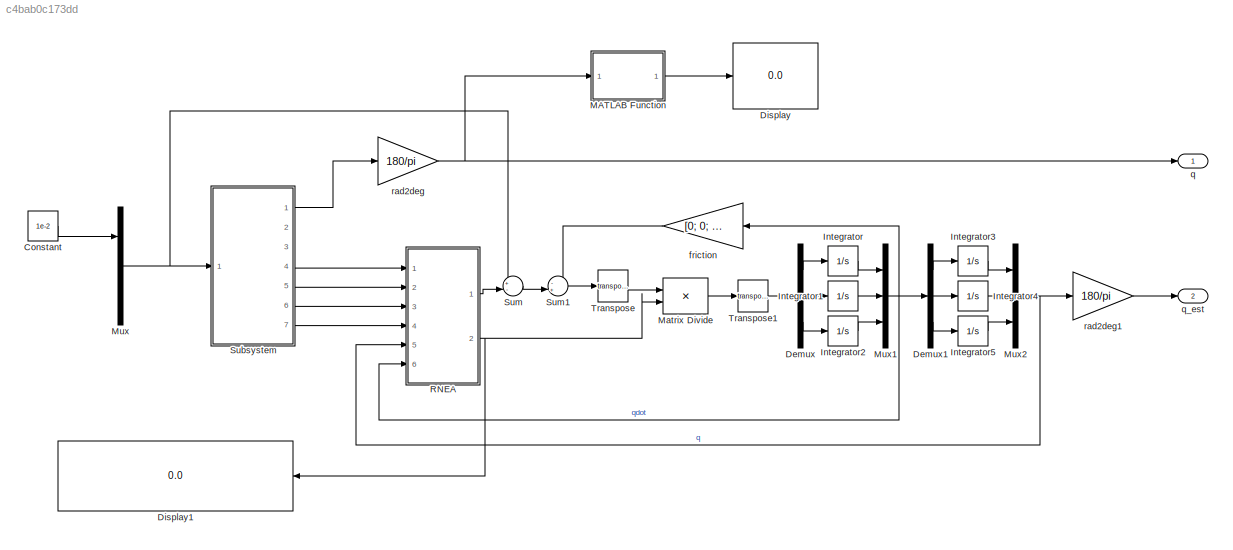
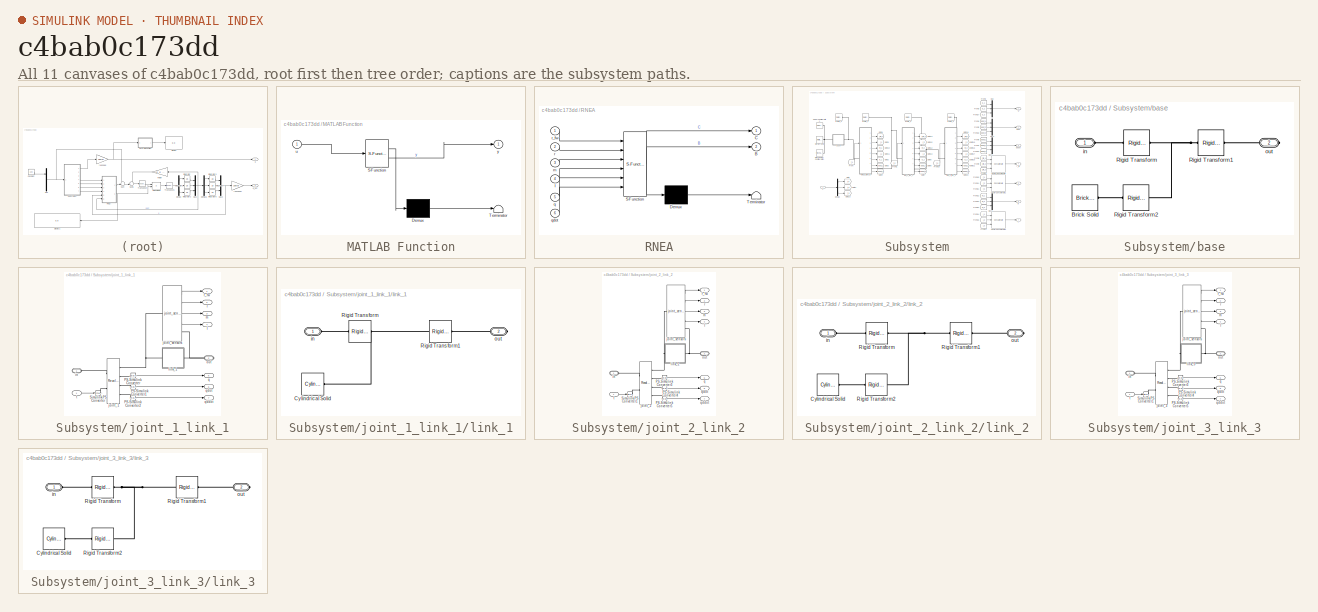
[diagram: thumbnail index - all 11 canvases of the model, root first then tree order]
MODEL slx_c4bab0c173dd
KIND model
CONFIG AbsTol = 1e-3
CONFIG EnableMultiTasking = on
CONFIG FixedStep = auto
CONFIG InitFcn = parameters;
CONFIG MaxStep = 0.01
CONFIG MinStep = auto
CONFIG RelTol = 1e-3
CONFIG SampleTimeConstraint = Unconstrained
CONFIG SolverName = VariableStepAuto
CONFIG StartTime = 0.0
CONFIG StopTime = 10.0
BLOCK [Constant] Constant
  Value = 1e-2
BLOCK [Demux] Demux
  Outputs = 3
  Ports = [1, 3]
BLOCK [Demux] Demux1
  Outputs = 3
  Ports = [1, 3]
BLOCK [Display] Display
  Ports = [1]
BLOCK [Display] Display1
  NameLocation = top
  Ports = [1]
BLOCK [Integrator] Integrator
  Ports = [1, 1]
BLOCK [Integrator] Integrator1
  Ports = [1, 1]
BLOCK [Integrator] Integrator2
  Ports = [1, 1]
BLOCK [Integrator] Integrator3
  InitialCondition = q1_init
  Ports = [1, 1]
BLOCK [Integrator] Integrator4
  InitialCondition = q2_init
  Ports = [1, 1]
BLOCK [Integrator] Integrator5
  InitialCondition = q2_init
  Ports = [1, 1]
BLOCK [SubSystem] MATLAB Function
  ErrorFcn = Stateflow.Translate.translate
  PermitHierarchicalResolution = ExplicitOnly
  Ports = [1, 1]
  RequestExecContextInheritance = off
  SFBlockType = MATLAB Function
  TreatAsAtomicUnit = on
BLOCK [Demux] MATLAB Function/ Demux 
  Outputs = 1
  Ports = [1, 1]
BLOCK [S-Function] MATLAB Function/ SFunction 
  EnableBusSupport = on
  FunctionName = sf_sfun
  PortCounts = [1 2]
  Ports = [1, 2]
  SFcnIsStateOwnerBlock = off
  SFunctionDeploymentMode = off
  Tag = Stateflow S-Function 2
BLOCK [Terminator] MATLAB Function/ Terminator 
BLOCK [Inport] MATLAB Function/u
BLOCK [Outport] MATLAB Function/y
BLOCK [Product] Matrix Divide
  Inputs = */
  Multiplication = Matrix(*)
  Ports = [2, 1]
BLOCK [Mux] Mux
  DisplayOption = bar
  Inputs = 3
  Ports = [3, 1]
BLOCK [Mux] Mux1
  DisplayOption = bar
  Inputs = 3
  Ports = [3, 1]
BLOCK [Mux] Mux2
  DisplayOption = bar
  Inputs = 3
  Ports = [3, 1]
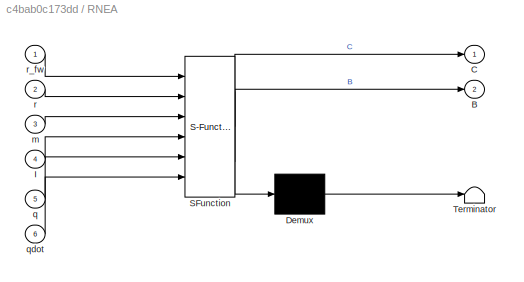
BLOCK [SubSystem] RNEA
  ErrorFcn = Stateflow.Translate.translate
  PermitHierarchicalResolution = ExplicitOnly
  Ports = [6, 2]
  RequestExecContextInheritance = off
  SFBlockType = MATLAB Function
  TreatAsAtomicUnit = on
BLOCK [Demux] RNEA/ Demux 
  Outputs = 1
  Ports = [1, 1]
BLOCK [S-Function] RNEA/ SFunction 
  EnableBusSupport = on
  FunctionName = sf_sfun
  Parameters = g
  PortCounts = [6 3]
  Ports = [6, 3]
  SFcnIsStateOwnerBlock = off
  SFunctionDeploymentMode = off
  Tag = Stateflow S-Function 1
BLOCK [Terminator] RNEA/ Terminator 
BLOCK [Outport] RNEA/B
  Port = 2
BLOCK [Outport] RNEA/C
BLOCK [Inport] RNEA/I
  Port = 4
BLOCK [Inport] RNEA/m
  Port = 3
BLOCK [Inport] RNEA/q
  Port = 5
BLOCK [Inport] RNEA/qdot
  Port = 6
BLOCK [Inport] RNEA/r
  Port = 2
BLOCK [Inport] RNEA/r_fw
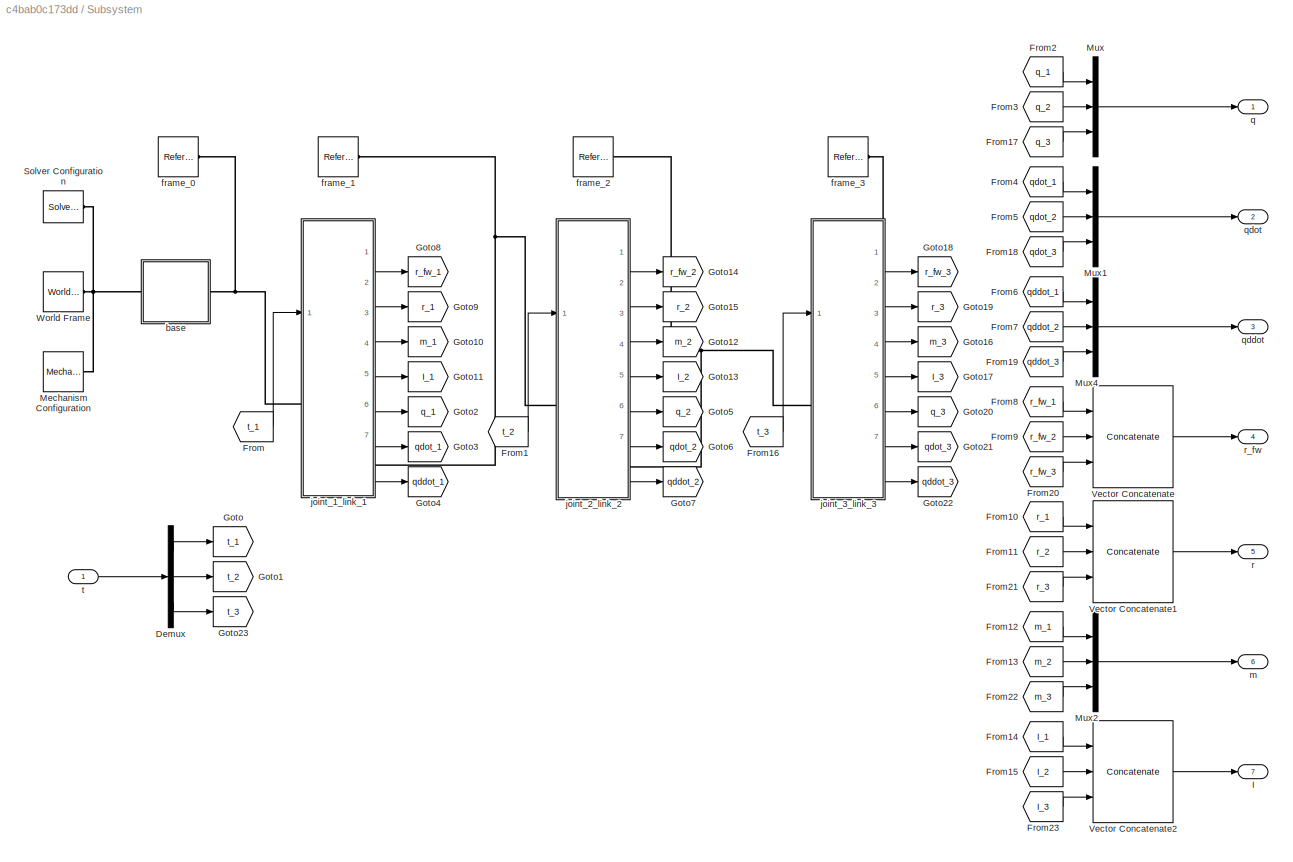
BLOCK [SubSystem] Subsystem
  Ports = [1, 7]
  RequestExecContextInheritance = off
BLOCK [Demux] Subsystem/Demux
  Outputs = 3
  Ports = [1, 3]
BLOCK [From] Subsystem/From
  GotoTag = t_1
BLOCK [From] Subsystem/From1
  GotoTag = t_2
BLOCK [From] Subsystem/From10
  GotoTag = r_1
BLOCK [From] Subsystem/From11
  GotoTag = r_2
BLOCK [From] Subsystem/From12
  GotoTag = m_1
BLOCK [From] Subsystem/From13
  GotoTag = m_2
BLOCK [From] Subsystem/From14
  GotoTag = I_1
BLOCK [From] Subsystem/From15
  GotoTag = I_2
BLOCK [From] Subsystem/From16
  GotoTag = t_3
BLOCK [From] Subsystem/From17
  GotoTag = q_3
BLOCK [From] Subsystem/From18
  GotoTag = qdot_3
BLOCK [From] Subsystem/From19
  GotoTag = qddot_3
BLOCK [From] Subsystem/From2
  GotoTag = q_1
BLOCK [From] Subsystem/From20
  GotoTag = r_fw_3
BLOCK [From] Subsystem/From21
  GotoTag = r_3
BLOCK [From] Subsystem/From22
  GotoTag = m_3
BLOCK [From] Subsystem/From23
  GotoTag = I_3
BLOCK [From] Subsystem/From3
  GotoTag = q_2
BLOCK [From] Subsystem/From4
  GotoTag = qdot_1
BLOCK [From] Subsystem/From5
  GotoTag = qdot_2
BLOCK [From] Subsystem/From6
  GotoTag = qddot_1
BLOCK [From] Subsystem/From7
  GotoTag = qddot_2
BLOCK [From] Subsystem/From8
  GotoTag = r_fw_1
BLOCK [From] Subsystem/From9
  GotoTag = r_fw_2
BLOCK [Goto] Subsystem/Goto
  GotoTag = t_1
BLOCK [Goto] Subsystem/Goto1
  GotoTag = t_2
BLOCK [Goto] Subsystem/Goto10
  GotoTag = m_1
BLOCK [Goto] Subsystem/Goto11
  GotoTag = I_1
BLOCK [Goto] Subsystem/Goto12
  GotoTag = m_2
BLOCK [Goto] Subsystem/Goto13
  GotoTag = I_2
BLOCK [Goto] Subsystem/Goto14
  GotoTag = r_fw_2
BLOCK [Goto] Subsystem/Goto15
  GotoTag = r_2
BLOCK [Goto] Subsystem/Goto16
  GotoTag = m_3
BLOCK [Goto] Subsystem/Goto17
  GotoTag = I_3
BLOCK [Goto] Subsystem/Goto18
  GotoTag = r_fw_3
BLOCK [Goto] Subsystem/Goto19
  GotoTag = r_3
BLOCK [Goto] Subsystem/Goto2
  GotoTag = q_1
BLOCK [Goto] Subsystem/Goto20
  GotoTag = q_3
BLOCK [Goto] Subsystem/Goto21
  GotoTag = qdot_3
BLOCK [Goto] Subsystem/Goto22
  GotoTag = qddot_3
BLOCK [Goto] Subsystem/Goto23
  GotoTag = t_3
BLOCK [Goto] Subsystem/Goto3
  GotoTag = qdot_1
BLOCK [Goto] Subsystem/Goto4
  GotoTag = qddot_1
BLOCK [Goto] Subsystem/Goto5
  GotoTag = q_2
BLOCK [Goto] Subsystem/Goto6
  GotoTag = qdot_2
BLOCK [Goto] Subsystem/Goto7
  GotoTag = qddot_2
BLOCK [Goto] Subsystem/Goto8
  GotoTag = r_fw_1
BLOCK [Goto] Subsystem/Goto9
  GotoTag = r_1
BLOCK [Outport] Subsystem/I
  Port = 7
BLOCK [Reference] Subsystem/Mechanism Configuration  REF=sm_lib/Utilities/Mechanism
Configuration
  Ports = [0, 0, 0, 0, 0, 0, 1]
  SourceBlock = sm_lib/Utilities/Mechanism\nConfiguration
  SourceProductBaseCode = MS
  SourceType = Mechanism\nConfiguration
BLOCK [Mux] Subsystem/Mux
  DisplayOption = bar
  Inputs = 3
  Ports = [3, 1]
BLOCK [Mux] Subsystem/Mux1
  DisplayOption = bar
  Inputs = 3
  Ports = [3, 1]
BLOCK [Mux] Subsystem/Mux2
  DisplayOption = bar
  Inputs = 3
  Ports = [3, 1]
BLOCK [Mux] Subsystem/Mux4
  DisplayOption = bar
  Inputs = 3
  Ports = [3, 1]
BLOCK [Reference] Subsystem/Solver Configuration  REF=nesl_utility/Solver
Configuration
  Ports = [0, 0, 0, 0, 0, 0, 1]
  SourceBlock = nesl_utility/Solver\nConfiguration
  SourceProductName = Utilities
  SourceType = Solver\nConfiguration
BLOCK [Concatenate] Subsystem/Vector Concatenate
  ConcatenateDimension = 2
  Mode = Multidimensional array
  NumInputs = 3
  Ports = [3, 1]
BLOCK [Concatenate] Subsystem/Vector Concatenate1
  ConcatenateDimension = 2
  Mode = Multidimensional array
  NumInputs = 3
  Ports = [3, 1]
BLOCK [Concatenate] Subsystem/Vector Concatenate2
  Mode = Multidimensional array
  NumInputs = 3
  Ports = [3, 1]
BLOCK [Reference] Subsystem/World Frame  REF=sm_lib/Frames and
Transforms/World Frame
  Ports = [0, 0, 0, 0, 0, 0, 1]
  SourceBlock = sm_lib/Frames and\nTransforms/World Frame
  SourceProductName = Multibody
  SourceType = World Frame
BLOCK [SubSystem] Subsystem/base
  Ports = [0, 0, 0, 0, 0, 1, 1]
  RequestExecContextInheritance = off
BLOCK [Reference] Subsystem/base/Brick Solid  REF=sm_lib/Body Elements/Brick Solid
  Ports = [0, 0, 0, 0, 0, 0, 1]
  SourceBlock = sm_lib/Body Elements/Brick Solid
  SourceProductBaseCode = MS
  SourceType = Brick Solid
BLOCK [Reference] Subsystem/base/Rigid Transform  REF=sm_lib/Frames and
Transforms/Rigid
Transform
  Ports = [0, 0, 0, 0, 0, 1, 1]
  SourceBlock = sm_lib/Frames and\nTransforms/Rigid\nTransform
  SourceProductBaseCode = MS
  SourceType = Rigid\nTransform
BLOCK [Reference] Subsystem/base/Rigid Transform1  REF=sm_lib/Frames and
Transforms/Rigid
Transform
  Ports = [0, 0, 0, 0, 0, 1, 1]
  SourceBlock = sm_lib/Frames and\nTransforms/Rigid\nTransform
  SourceProductBaseCode = MS
  SourceType = Rigid\nTransform
BLOCK [Reference] Subsystem/base/Rigid Transform2  REF=sm_lib/Frames and
Transforms/Rigid
Transform
  Ports = [0, 0, 0, 0, 0, 1, 1]
  SourceBlock = sm_lib/Frames and\nTransforms/Rigid\nTransform
  SourceProductBaseCode = MS
  SourceType = Rigid\nTransform
BLOCK [PMIOPort] Subsystem/base/in
  Side = Left
BLOCK [PMIOPort] Subsystem/base/out
  Port = 2
  Side = Right
BLOCK [Reference] Subsystem/frame_0  REF=sm_lib/Frames and
Transforms/Reference
Frame
  Ports = [0, 0, 0, 0, 0, 0, 1]
  SourceBlock = sm_lib/Frames and\nTransforms/Reference\nFrame
  SourceProductBaseCode = MS
  SourceType = Reference\nFrame
BLOCK [Reference] Subsystem/frame_1  REF=sm_lib/Frames and
Transforms/Reference
Frame
  Ports = [0, 0, 0, 0, 0, 0, 1]
  SourceBlock = sm_lib/Frames and\nTransforms/Reference\nFrame
  SourceProductBaseCode = MS
  SourceType = Reference\nFrame
BLOCK [Reference] Subsystem/frame_2  REF=sm_lib/Frames and
Transforms/Reference
Frame
  Ports = [0, 0, 0, 0, 0, 0, 1]
  SourceBlock = sm_lib/Frames and\nTransforms/Reference\nFrame
  SourceProductBaseCode = MS
  SourceType = Reference\nFrame
BLOCK [Reference] Subsystem/frame_3  REF=sm_lib/Frames and
Transforms/Reference
Frame
  Ports = [0, 0, 0, 0, 0, 0, 1]
  SourceBlock = sm_lib/Frames and\nTransforms/Reference\nFrame
  SourceProductBaseCode = MS
  SourceType = Reference\nFrame
BLOCK [SubSystem] Subsystem/joint_1_link_1
  PortSchema = {"entries":[{"content":{"sides":[{"content":{"connectorIds":["LConn1","In1"]},"type":"ConnectorPlacement.EquallySpacedRectSide","uuid":"70143846-b131-4138-8b46-ded6337bfe91"},{"content":{"connectorIds":["RConn1","Out1","Out2","Out3","Out4","Out5","Out6","Out7"],"side":"RIGHT"},"type":"ConnectorPlacement.EquallySpacedRectSide","uuid":"7a88210b-34f9-4fff-83ab-b856809650f8"},{"content":{"connectorIds...<+444ch>  <repeated x3 — deduplicated; at blocks: joint_1_link_1, joint_2_link_2, joint_3_link_3>
  Ports = [1, 7, 0, 0, 0, 1, 1]
  RequestExecContextInheritance = off
BLOCK [Outport] Subsystem/joint_1_link_1/I
  Port = 4
BLOCK [Reference] Subsystem/joint_1_link_1/PS-Simulink Converter  REF=nesl_utility/PS-Simulink
Converter
  Ports = [0, 1, 0, 0, 0, 1]
  SourceBlock = nesl_utility/PS-Simulink\nConverter
  SourceProductBaseCode = SS
  SourceType = PS-Simulink\nConverter
BLOCK [Reference] Subsystem/joint_1_link_1/PS-Simulink Converter1  REF=nesl_utility/PS-Simulink
Converter
  Ports = [0, 1, 0, 0, 0, 1]
  SourceBlock = nesl_utility/PS-Simulink\nConverter
  SourceProductBaseCode = SS
  SourceType = PS-Simulink\nConverter
BLOCK [Reference] Subsystem/joint_1_link_1/PS-Simulink Converter2  REF=nesl_utility/PS-Simulink
Converter
  Ports = [0, 1, 0, 0, 0, 1]
  SourceBlock = nesl_utility/PS-Simulink\nConverter
  SourceProductBaseCode = SS
  SourceType = PS-Simulink\nConverter
BLOCK [Reference] Subsystem/joint_1_link_1/Simulink-PS Converter  REF=nesl_utility/Simulink-PS
Converter
  Ports = [1, 0, 0, 0, 0, 0, 1]
  SourceBlock = nesl_utility/Simulink-PS\nConverter
  SourceProductBaseCode = SS
  SourceType = Simulink-PS\nConverter
BLOCK [PMIOPort] Subsystem/joint_1_link_1/in
  Side = Left
BLOCK [Reference] Subsystem/joint_1_link_1/joint_1  REF=sm_lib/Joints/Revolute Joint
  Ports = [0, 0, 0, 0, 0, 2, 4]
  SourceBlock = sm_lib/Joints/Revolute Joint
  SourceProductBaseCode = MS
  SourceType = Revolute Joint
BLOCK [Reference] Subsystem/joint_1_link_1/joint_sensors  REF=robot_arms_library/joint_sensors  (lib defined in slx_32957a7d959d)
  Ports = [0, 4, 0, 0, 0, 1, 1]
  SourceBlock = robot_arms_library/joint_sensors
BLOCK [SubSystem] Subsystem/joint_1_link_1/link_1
  Ports = [0, 0, 0, 0, 0, 1, 1]
  RequestExecContextInheritance = off
BLOCK [Reference] Subsystem/joint_1_link_1/link_1/Cylindrical Solid  REF=sm_lib/Body Elements/Cylindrical Solid
  Ports = [0, 0, 0, 0, 0, 0, 1]
  SourceBlock = sm_lib/Body Elements/Cylindrical Solid
  SourceProductBaseCode = MS
  SourceType = Cylindrical Solid
BLOCK [Reference] Subsystem/joint_1_link_1/link_1/Rigid Transform  REF=sm_lib/Frames and
Transforms/Rigid
Transform
  Ports = [0, 0, 0, 0, 0, 1, 1]
  SourceBlock = sm_lib/Frames and\nTransforms/Rigid\nTransform
  SourceProductBaseCode = MS
  SourceType = Rigid\nTransform
BLOCK [Reference] Subsystem/joint_1_link_1/link_1/Rigid Transform1  REF=sm_lib/Frames and
Transforms/Rigid
Transform
  Ports = [0, 0, 0, 0, 0, 1, 1]
  SourceBlock = sm_lib/Frames and\nTransforms/Rigid\nTransform
  SourceProductBaseCode = MS
  SourceType = Rigid\nTransform
BLOCK [PMIOPort] Subsystem/joint_1_link_1/link_1/in
  Side = Left
BLOCK [PMIOPort] Subsystem/joint_1_link_1/link_1/out
  Port = 2
  Side = Right
BLOCK [Outport] Subsystem/joint_1_link_1/m
  Port = 3
BLOCK [PMIOPort] Subsystem/joint_1_link_1/out
  Port = 2
  Side = Right
BLOCK [Outport] Subsystem/joint_1_link_1/q
  Port = 5
BLOCK [Outport] Subsystem/joint_1_link_1/qddot
  Port = 7
BLOCK [Outport] Subsystem/joint_1_link_1/qdot
  Port = 6
BLOCK [Outport] Subsystem/joint_1_link_1/r
  Port = 2
BLOCK [Outport] Subsystem/joint_1_link_1/r_fw
BLOCK [Inport] Subsystem/joint_1_link_1/t
BLOCK [SubSystem] Subsystem/joint_2_link_2
  Ports = [1, 7, 0, 0, 0, 1, 1]
  RequestExecContextInheritance = off
BLOCK [Outport] Subsystem/joint_2_link_2/I
  Port = 4
BLOCK [Reference] Subsystem/joint_2_link_2/PS-Simulink Converter3  REF=nesl_utility/PS-Simulink
Converter
  Ports = [0, 1, 0, 0, 0, 1]
  SourceBlock = nesl_utility/PS-Simulink\nConverter
  SourceProductBaseCode = SS
  SourceType = PS-Simulink\nConverter
BLOCK [Reference] Subsystem/joint_2_link_2/PS-Simulink Converter4  REF=nesl_utility/PS-Simulink
Converter
  Ports = [0, 1, 0, 0, 0, 1]
  SourceBlock = nesl_utility/PS-Simulink\nConverter
  SourceProductBaseCode = SS
  SourceType = PS-Simulink\nConverter
BLOCK [Reference] Subsystem/joint_2_link_2/PS-Simulink Converter5  REF=nesl_utility/PS-Simulink
Converter
  Ports = [0, 1, 0, 0, 0, 1]
  SourceBlock = nesl_utility/PS-Simulink\nConverter
  SourceProductBaseCode = SS
  SourceType = PS-Simulink\nConverter
BLOCK [Reference] Subsystem/joint_2_link_2/Simulink-PS Converter1  REF=nesl_utility/Simulink-PS
Converter
  Ports = [1, 0, 0, 0, 0, 0, 1]
  SourceBlock = nesl_utility/Simulink-PS\nConverter
  SourceProductBaseCode = SS
  SourceType = Simulink-PS\nConverter
BLOCK [PMIOPort] Subsystem/joint_2_link_2/in
  Side = Left
BLOCK [Reference] Subsystem/joint_2_link_2/joint_2  REF=sm_lib/Joints/Revolute Joint
  Ports = [0, 0, 0, 0, 0, 2, 4]
  SourceBlock = sm_lib/Joints/Revolute Joint
  SourceProductBaseCode = MS
  SourceType = Revolute Joint
BLOCK [Reference] Subsystem/joint_2_link_2/joint_sensors  REF=robot_arms_library/joint_sensors  (lib defined in slx_32957a7d959d)
  Ports = [0, 4, 0, 0, 0, 1, 1]
  SourceBlock = robot_arms_library/joint_sensors
BLOCK [SubSystem] Subsystem/joint_2_link_2/link_2
  Ports = [0, 0, 0, 0, 0, 1, 1]
  RequestExecContextInheritance = off
BLOCK [Reference] Subsystem/joint_2_link_2/link_2/Cylindrical Solid  REF=sm_lib/Body Elements/Cylindrical Solid
  Ports = [0, 0, 0, 0, 0, 0, 1]
  SourceBlock = sm_lib/Body Elements/Cylindrical Solid
  SourceProductBaseCode = MS
  SourceType = Cylindrical Solid
BLOCK [Reference] Subsystem/joint_2_link_2/link_2/Rigid Transform  REF=sm_lib/Frames and
Transforms/Rigid
Transform
  Ports = [0, 0, 0, 0, 0, 1, 1]
  SourceBlock = sm_lib/Frames and\nTransforms/Rigid\nTransform
  SourceProductBaseCode = MS
  SourceType = Rigid\nTransform
BLOCK [Reference] Subsystem/joint_2_link_2/link_2/Rigid Transform1  REF=sm_lib/Frames and
Transforms/Rigid
Transform
  Ports = [0, 0, 0, 0, 0, 1, 1]
  SourceBlock = sm_lib/Frames and\nTransforms/Rigid\nTransform
  SourceProductBaseCode = MS
  SourceType = Rigid\nTransform
BLOCK [Reference] Subsystem/joint_2_link_2/link_2/Rigid Transform2  REF=sm_lib/Frames and
Transforms/Rigid
Transform
  Ports = [0, 0, 0, 0, 0, 1, 1]
  SourceBlock = sm_lib/Frames and\nTransforms/Rigid\nTransform
  SourceProductBaseCode = MS
  SourceType = Rigid\nTransform
BLOCK [PMIOPort] Subsystem/joint_2_link_2/link_2/in
  Side = Left
BLOCK [PMIOPort] Subsystem/joint_2_link_2/link_2/out
  Port = 2
  Side = Right
BLOCK [Outport] Subsystem/joint_2_link_2/m
  Port = 3
BLOCK [PMIOPort] Subsystem/joint_2_link_2/out
  Port = 2
  Side = Right
BLOCK [Outport] Subsystem/joint_2_link_2/q
  Port = 5
BLOCK [Outport] Subsystem/joint_2_link_2/qddot
  Port = 7
BLOCK [Outport] Subsystem/joint_2_link_2/qdot
  Port = 6
BLOCK [Outport] Subsystem/joint_2_link_2/r
  Port = 2
BLOCK [Outport] Subsystem/joint_2_link_2/r_fw
BLOCK [Inport] Subsystem/joint_2_link_2/t
BLOCK [SubSystem] Subsystem/joint_3_link_3
  Ports = [1, 7, 0, 0, 0, 1, 1]
  RequestExecContextInheritance = off
BLOCK [Outport] Subsystem/joint_3_link_3/I
  Port = 4
BLOCK [Reference] Subsystem/joint_3_link_3/PS-Simulink Converter3  REF=nesl_utility/PS-Simulink
Converter
  Ports = [0, 1, 0, 0, 0, 1]
  SourceBlock = nesl_utility/PS-Simulink\nConverter
  SourceProductBaseCode = SS
  SourceType = PS-Simulink\nConverter
BLOCK [Reference] Subsystem/joint_3_link_3/PS-Simulink Converter4  REF=nesl_utility/PS-Simulink
Converter
  Ports = [0, 1, 0, 0, 0, 1]
  SourceBlock = nesl_utility/PS-Simulink\nConverter
  SourceProductBaseCode = SS
  SourceType = PS-Simulink\nConverter
BLOCK [Reference] Subsystem/joint_3_link_3/PS-Simulink Converter5  REF=nesl_utility/PS-Simulink
Converter
  Ports = [0, 1, 0, 0, 0, 1]
  SourceBlock = nesl_utility/PS-Simulink\nConverter
  SourceProductBaseCode = SS
  SourceType = PS-Simulink\nConverter
BLOCK [Reference] Subsystem/joint_3_link_3/Simulink-PS Converter1  REF=nesl_utility/Simulink-PS
Converter
  Ports = [1, 0, 0, 0, 0, 0, 1]
  SourceBlock = nesl_utility/Simulink-PS\nConverter
  SourceProductBaseCode = SS
  SourceType = Simulink-PS\nConverter
BLOCK [PMIOPort] Subsystem/joint_3_link_3/in
  Side = Left
BLOCK [Reference] Subsystem/joint_3_link_3/joint_3  REF=sm_lib/Joints/Revolute Joint
  Ports = [0, 0, 0, 0, 0, 2, 4]
  SourceBlock = sm_lib/Joints/Revolute Joint
  SourceProductBaseCode = MS
  SourceType = Revolute Joint
BLOCK [Reference] Subsystem/joint_3_link_3/joint_sensors  REF=robot_arms_library/joint_sensors  (lib defined in slx_32957a7d959d)
  Ports = [0, 4, 0, 0, 0, 1, 1]
  SourceBlock = robot_arms_library/joint_sensors
BLOCK [SubSystem] Subsystem/joint_3_link_3/link_3
  Ports = [0, 0, 0, 0, 0, 1, 1]
  RequestExecContextInheritance = off
BLOCK [Reference] Subsystem/joint_3_link_3/link_3/Cylindrical Solid  REF=sm_lib/Body Elements/Cylindrical Solid
  Ports = [0, 0, 0, 0, 0, 0, 1]
  SourceBlock = sm_lib/Body Elements/Cylindrical Solid
  SourceProductBaseCode = MS
  SourceType = Cylindrical Solid
BLOCK [Reference] Subsystem/joint_3_link_3/link_3/Rigid Transform  REF=sm_lib/Frames and
Transforms/Rigid
Transform
  Ports = [0, 0, 0, 0, 0, 1, 1]
  SourceBlock = sm_lib/Frames and\nTransforms/Rigid\nTransform
  SourceProductBaseCode = MS
  SourceType = Rigid\nTransform
BLOCK [Reference] Subsystem/joint_3_link_3/link_3/Rigid Transform1  REF=sm_lib/Frames and
Transforms/Rigid
Transform
  Ports = [0, 0, 0, 0, 0, 1, 1]
  SourceBlock = sm_lib/Frames and\nTransforms/Rigid\nTransform
  SourceProductBaseCode = MS
  SourceType = Rigid\nTransform
BLOCK [Reference] Subsystem/joint_3_link_3/link_3/Rigid Transform2  REF=sm_lib/Frames and
Transforms/Rigid
Transform
  Ports = [0, 0, 0, 0, 0, 1, 1]
  SourceBlock = sm_lib/Frames and\nTransforms/Rigid\nTransform
  SourceProductBaseCode = MS
  SourceType = Rigid\nTransform
BLOCK [PMIOPort] Subsystem/joint_3_link_3/link_3/in
  Side = Left
BLOCK [PMIOPort] Subsystem/joint_3_link_3/link_3/out
  Port = 2
  Side = Right
BLOCK [Outport] Subsystem/joint_3_link_3/m
  Port = 3
BLOCK [PMIOPort] Subsystem/joint_3_link_3/out
  Port = 2
  Side = Right
BLOCK [Outport] Subsystem/joint_3_link_3/q
  Port = 5
BLOCK [Outport] Subsystem/joint_3_link_3/qddot
  Port = 7
BLOCK [Outport] Subsystem/joint_3_link_3/qdot
  Port = 6
BLOCK [Outport] Subsystem/joint_3_link_3/r
  Port = 2
BLOCK [Outport] Subsystem/joint_3_link_3/r_fw
BLOCK [Inport] Subsystem/joint_3_link_3/t
BLOCK [Outport] Subsystem/m
  Port = 6
BLOCK [Outport] Subsystem/q
BLOCK [Outport] Subsystem/qddot
  Port = 3
BLOCK [Outport] Subsystem/qdot
  Port = 2
BLOCK [Outport] Subsystem/r
  Port = 5
BLOCK [Outport] Subsystem/r_fw
  Port = 4
BLOCK [Inport] Subsystem/t
BLOCK [Sum] Sum
  Inputs = +-|
  Ports = [2, 1]
BLOCK [Sum] Sum1
  Inputs = -+|
  Ports = [2, 1]
BLOCK [Math] Transpose
  Operator = transpose
  Ports = [1, 1]
BLOCK [Math] Transpose1
  Operator = transpose
  Ports = [1, 1]
BLOCK [Gain] friction
  Gain = [0; 0; 0]
BLOCK [Outport] q
BLOCK [Outport] q_est
  Port = 2
BLOCK [Gain] rad2deg
  Gain = 180/pi
BLOCK [Gain] rad2deg1
  Gain = 180/pi
LINE Constant:1 -> Mux:1
LINE Demux1:1 -> Integrator3:1
LINE Demux1:2 -> Integrator4:1
LINE Demux1:3 -> Integrator5:1
LINE Demux:1 -> Integrator:1
LINE Demux:2 -> Integrator1:1
LINE Demux:3 -> Integrator2:1
LINE Integrator1:1 -> Mux1:2
LINE Integrator2:1 -> Mux1:3
LINE Integrator3:1 -> Mux2:1
LINE Integrator4:1 -> Mux2:2
LINE Integrator5:1 -> Mux2:3
LINE Integrator:1 -> Mux1:1
LINE MATLAB Function:1 -> Display:1
LINE Matrix Divide:1 -> Transpose1:1
NET Mux1:1 -> Demux1:1, RNEA:6, friction:1
NET Mux2:1 -> RNEA:5, rad2deg1:1
NET Mux:1 -> Subsystem:1, Sum:1
LINE RNEA:1 -> Sum:2
NET RNEA:2 -> Display1:1, Matrix Divide:2
LINE Subsystem/Demux:1 -> Subsystem/Goto:1
LINE Subsystem/Demux:2 -> Subsystem/Goto1:1
LINE Subsystem/Demux:3 -> Subsystem/Goto23:1
LINE Subsystem/From10:1 -> Subsystem/Vector Concatenate1:1
LINE Subsystem/From11:1 -> Subsystem/Vector Concatenate1:2
LINE Subsystem/From12:1 -> Subsystem/Mux2:1
LINE Subsystem/From13:1 -> Subsystem/Mux2:2
LINE Subsystem/From14:1 -> Subsystem/Vector Concatenate2:1
LINE Subsystem/From15:1 -> Subsystem/Vector Concatenate2:2
LINE Subsystem/From16:1 -> Subsystem/joint_3_link_3:1
LINE Subsystem/From17:1 -> Subsystem/Mux:3
LINE Subsystem/From18:1 -> Subsystem/Mux1:3
LINE Subsystem/From19:1 -> Subsystem/Mux4:3
LINE Subsystem/From1:1 -> Subsystem/joint_2_link_2:1
LINE Subsystem/From20:1 -> Subsystem/Vector Concatenate:3
LINE Subsystem/From21:1 -> Subsystem/Vector Concatenate1:3
LINE Subsystem/From22:1 -> Subsystem/Mux2:3
LINE Subsystem/From23:1 -> Subsystem/Vector Concatenate2:3
LINE Subsystem/From2:1 -> Subsystem/Mux:1
LINE Subsystem/From3:1 -> Subsystem/Mux:2
LINE Subsystem/From4:1 -> Subsystem/Mux1:1
LINE Subsystem/From5:1 -> Subsystem/Mux1:2
LINE Subsystem/From6:1 -> Subsystem/Mux4:1
LINE Subsystem/From7:1 -> Subsystem/Mux4:2
LINE Subsystem/From8:1 -> Subsystem/Vector Concatenate:1
LINE Subsystem/From9:1 -> Subsystem/Vector Concatenate:2
LINE Subsystem/From:1 -> Subsystem/joint_1_link_1:1
LINE Subsystem/Mux1:1 -> Subsystem/qdot:1
LINE Subsystem/Mux2:1 -> Subsystem/m:1
LINE Subsystem/Mux4:1 -> Subsystem/qddot:1
LINE Subsystem/Mux:1 -> Subsystem/q:1
LINE Subsystem/Vector Concatenate1:1 -> Subsystem/r:1
LINE Subsystem/Vector Concatenate2:1 -> Subsystem/I:1
LINE Subsystem/Vector Concatenate:1 -> Subsystem/r_fw:1
LINE Subsystem/joint_1_link_1/PS-Simulink Converter1:1 -> Subsystem/joint_1_link_1/qdot:1
LINE Subsystem/joint_1_link_1/PS-Simulink Converter2:1 -> Subsystem/joint_1_link_1/qddot:1
LINE Subsystem/joint_1_link_1/PS-Simulink Converter:1 -> Subsystem/joint_1_link_1/q:1
LINE Subsystem/joint_1_link_1/joint_sensors:1 -> Subsystem/joint_1_link_1/r_fw:1
LINE Subsystem/joint_1_link_1/joint_sensors:2 -> Subsystem/joint_1_link_1/r:1
LINE Subsystem/joint_1_link_1/joint_sensors:3 -> Subsystem/joint_1_link_1/m:1
LINE Subsystem/joint_1_link_1/joint_sensors:4 -> Subsystem/joint_1_link_1/I:1
LINE Subsystem/joint_1_link_1/t:1 -> Subsystem/joint_1_link_1/Simulink-PS Converter:1
LINE Subsystem/joint_1_link_1:1 -> Subsystem/Goto8:1
LINE Subsystem/joint_1_link_1:2 -> Subsystem/Goto9:1
LINE Subsystem/joint_1_link_1:3 -> Subsystem/Goto10:1
LINE Subsystem/joint_1_link_1:4 -> Subsystem/Goto11:1
LINE Subsystem/joint_1_link_1:5 -> Subsystem/Goto2:1
LINE Subsystem/joint_1_link_1:6 -> Subsystem/Goto3:1
LINE Subsystem/joint_1_link_1:7 -> Subsystem/Goto4:1
LINE Subsystem/joint_2_link_2/PS-Simulink Converter3:1 -> Subsystem/joint_2_link_2/q:1
LINE Subsystem/joint_2_link_2/PS-Simulink Converter4:1 -> Subsystem/joint_2_link_2/qdot:1
LINE Subsystem/joint_2_link_2/PS-Simulink Converter5:1 -> Subsystem/joint_2_link_2/qddot:1
LINE Subsystem/joint_2_link_2/joint_sensors:1 -> Subsystem/joint_2_link_2/r_fw:1
LINE Subsystem/joint_2_link_2/joint_sensors:2 -> Subsystem/joint_2_link_2/r:1
LINE Subsystem/joint_2_link_2/joint_sensors:3 -> Subsystem/joint_2_link_2/m:1
LINE Subsystem/joint_2_link_2/joint_sensors:4 -> Subsystem/joint_2_link_2/I:1
LINE Subsystem/joint_2_link_2/t:1 -> Subsystem/joint_2_link_2/Simulink-PS Converter1:1
LINE Subsystem/joint_2_link_2:1 -> Subsystem/Goto14:1
LINE Subsystem/joint_2_link_2:2 -> Subsystem/Goto15:1
LINE Subsystem/joint_2_link_2:3 -> Subsystem/Goto12:1
LINE Subsystem/joint_2_link_2:4 -> Subsystem/Goto13:1
LINE Subsystem/joint_2_link_2:5 -> Subsystem/Goto5:1
LINE Subsystem/joint_2_link_2:6 -> Subsystem/Goto6:1
LINE Subsystem/joint_2_link_2:7 -> Subsystem/Goto7:1
LINE Subsystem/joint_3_link_3/PS-Simulink Converter3:1 -> Subsystem/joint_3_link_3/q:1
LINE Subsystem/joint_3_link_3/PS-Simulink Converter4:1 -> Subsystem/joint_3_link_3/qdot:1
LINE Subsystem/joint_3_link_3/PS-Simulink Converter5:1 -> Subsystem/joint_3_link_3/qddot:1
LINE Subsystem/joint_3_link_3/joint_sensors:1 -> Subsystem/joint_3_link_3/r_fw:1
LINE Subsystem/joint_3_link_3/joint_sensors:2 -> Subsystem/joint_3_link_3/r:1
LINE Subsystem/joint_3_link_3/joint_sensors:3 -> Subsystem/joint_3_link_3/m:1
LINE Subsystem/joint_3_link_3/joint_sensors:4 -> Subsystem/joint_3_link_3/I:1
LINE Subsystem/joint_3_link_3/t:1 -> Subsystem/joint_3_link_3/Simulink-PS Converter1:1
LINE Subsystem/joint_3_link_3:1 -> Subsystem/Goto18:1
LINE Subsystem/joint_3_link_3:2 -> Subsystem/Goto19:1
LINE Subsystem/joint_3_link_3:3 -> Subsystem/Goto16:1
LINE Subsystem/joint_3_link_3:4 -> Subsystem/Goto17:1
LINE Subsystem/joint_3_link_3:5 -> Subsystem/Goto20:1
LINE Subsystem/joint_3_link_3:6 -> Subsystem/Goto21:1
LINE Subsystem/joint_3_link_3:7 -> Subsystem/Goto22:1
LINE Subsystem/t:1 -> Subsystem/Demux:1
LINE Subsystem:1 -> rad2deg:1
LINE Subsystem:4 -> RNEA:1
LINE Subsystem:5 -> RNEA:2
LINE Subsystem:6 -> RNEA:3
LINE Subsystem:7 -> RNEA:4
LINE Sum1:1 -> Transpose:1
LINE Sum:1 -> Sum1:2
LINE Transpose1:1 -> Demux:1
LINE Transpose:1 -> Matrix Divide:1
LINE friction:1 -> Sum1:1
LINE rad2deg1:1 -> q_est:1
NET rad2deg:1 -> MATLAB Function:1, q:1
PNET net1: Subsystem/Mechanism Configuration:RConn1 -- Subsystem/Solver Configuration:RConn1 -- Subsystem/World Frame:RConn1 -- Subsystem/base:LConn1
PLINE Subsystem/base/Brick Solid:RConn1 -- Subsystem/base/Rigid Transform2:LConn1
PNET net2: Subsystem/base/Rigid Transform1:LConn1 -- Subsystem/base/Rigid Transform2:RConn1 -- Subsystem/base/Rigid Transform:RConn1
PLINE Subsystem/base/Rigid Transform1:RConn1 -- Subsystem/base/out:RConn1
PLINE Subsystem/base/Rigid Transform:LConn1 -- Subsystem/base/in:RConn1
PNET net3: Subsystem/base:RConn1 -- Subsystem/frame_0:RConn1 -- Subsystem/joint_1_link_1:LConn1
PNET net4: Subsystem/frame_1:RConn1 -- Subsystem/joint_1_link_1:RConn1 -- Subsystem/joint_2_link_2:LConn1
PNET net5: Subsystem/frame_2:RConn1 -- Subsystem/joint_2_link_2:RConn1 -- Subsystem/joint_3_link_3:LConn1
PLINE Subsystem/frame_3:RConn1 -- Subsystem/joint_3_link_3:RConn1
PLINE Subsystem/joint_1_link_1/PS-Simulink Converter1:LConn1 -- Subsystem/joint_1_link_1/joint_1:RConn3
PLINE Subsystem/joint_1_link_1/PS-Simulink Converter2:LConn1 -- Subsystem/joint_1_link_1/joint_1:RConn4
PLINE Subsystem/joint_1_link_1/PS-Simulink Converter:LConn1 -- Subsystem/joint_1_link_1/joint_1:RConn2
PLINE Subsystem/joint_1_link_1/Simulink-PS Converter:RConn1 -- Subsystem/joint_1_link_1/joint_1:LConn2
PLINE Subsystem/joint_1_link_1/in:RConn1 -- Subsystem/joint_1_link_1/joint_1:LConn1
PNET net6: Subsystem/joint_1_link_1/joint_1:RConn1 -- Subsystem/joint_1_link_1/joint_sensors:LConn1 -- Subsystem/joint_1_link_1/link_1:LConn1
PNET net7: Subsystem/joint_1_link_1/joint_sensors:RConn1 -- Subsystem/joint_1_link_1/link_1:RConn1 -- Subsystem/joint_1_link_1/out:RConn1
PNET net8: Subsystem/joint_1_link_1/link_1/Cylindrical Solid:RConn1 -- Subsystem/joint_1_link_1/link_1/Rigid Transform1:LConn1 -- Subsystem/joint_1_link_1/link_1/Rigid Transform:RConn1
PLINE Subsystem/joint_1_link_1/link_1/Rigid Transform1:RConn1 -- Subsystem/joint_1_link_1/link_1/out:RConn1
PLINE Subsystem/joint_1_link_1/link_1/Rigid Transform:LConn1 -- Subsystem/joint_1_link_1/link_1/in:RConn1
PLINE Subsystem/joint_2_link_2/PS-Simulink Converter3:LConn1 -- Subsystem/joint_2_link_2/joint_2:RConn2
PLINE Subsystem/joint_2_link_2/PS-Simulink Converter4:LConn1 -- Subsystem/joint_2_link_2/joint_2:RConn3
PLINE Subsystem/joint_2_link_2/PS-Simulink Converter5:LConn1 -- Subsystem/joint_2_link_2/joint_2:RConn4
PLINE Subsystem/joint_2_link_2/Simulink-PS Converter1:RConn1 -- Subsystem/joint_2_link_2/joint_2:LConn2
PLINE Subsystem/joint_2_link_2/in:RConn1 -- Subsystem/joint_2_link_2/joint_2:LConn1
PNET net9: Subsystem/joint_2_link_2/joint_2:RConn1 -- Subsystem/joint_2_link_2/joint_sensors:LConn1 -- Subsystem/joint_2_link_2/link_2:LConn1
PNET net10: Subsystem/joint_2_link_2/joint_sensors:RConn1 -- Subsystem/joint_2_link_2/link_2:RConn1 -- Subsystem/joint_2_link_2/out:RConn1
PLINE Subsystem/joint_2_link_2/link_2/Cylindrical Solid:RConn1 -- Subsystem/joint_2_link_2/link_2/Rigid Transform2:LConn1
PNET net11: Subsystem/joint_2_link_2/link_2/Rigid Transform1:LConn1 -- Subsystem/joint_2_link_2/link_2/Rigid Transform2:RConn1 -- Subsystem/joint_2_link_2/link_2/Rigid Transform:RConn1
PLINE Subsystem/joint_2_link_2/link_2/Rigid Transform1:RConn1 -- Subsystem/joint_2_link_2/link_2/out:RConn1
PLINE Subsystem/joint_2_link_2/link_2/Rigid Transform:LConn1 -- Subsystem/joint_2_link_2/link_2/in:RConn1
PLINE Subsystem/joint_3_link_3/PS-Simulink Converter3:LConn1 -- Subsystem/joint_3_link_3/joint_3:RConn2
PLINE Subsystem/joint_3_link_3/PS-Simulink Converter4:LConn1 -- Subsystem/joint_3_link_3/joint_3:RConn3
PLINE Subsystem/joint_3_link_3/PS-Simulink Converter5:LConn1 -- Subsystem/joint_3_link_3/joint_3:RConn4
PLINE Subsystem/joint_3_link_3/Simulink-PS Converter1:RConn1 -- Subsystem/joint_3_link_3/joint_3:LConn2
PLINE Subsystem/joint_3_link_3/in:RConn1 -- Subsystem/joint_3_link_3/joint_3:LConn1
PNET net12: Subsystem/joint_3_link_3/joint_3:RConn1 -- Subsystem/joint_3_link_3/joint_sensors:LConn1 -- Subsystem/joint_3_link_3/link_3:LConn1
PNET net13: Subsystem/joint_3_link_3/joint_sensors:RConn1 -- Subsystem/joint_3_link_3/link_3:RConn1 -- Subsystem/joint_3_link_3/out:RConn1
PLINE Subsystem/joint_3_link_3/link_3/Cylindrical Solid:RConn1 -- Subsystem/joint_3_link_3/link_3/Rigid Transform2:LConn1
PNET net14: Subsystem/joint_3_link_3/link_3/Rigid Transform1:LConn1 -- Subsystem/joint_3_link_3/link_3/Rigid Transform2:RConn1 -- Subsystem/joint_3_link_3/link_3/Rigid Transform:RConn1
PLINE Subsystem/joint_3_link_3/link_3/Rigid Transform1:RConn1 -- Subsystem/joint_3_link_3/link_3/out:RConn1
PLINE Subsystem/joint_3_link_3/link_3/Rigid Transform:LConn1 -- Subsystem/joint_3_link_3/link_3/in:RConn1
note: NET lines group one-source signal fan-out (src -> all destinations, sorted); 1:1 wires keep LINE; PNET lines group multi-terminal physical nets as a canonical sorted terminal list (undirected conserving connections); 2-terminal nets keep the pairwise PLINE form
CHART RNEA states=1 transitions=1
  STATE_LABEL 'eML_blk_kernel()'
  STATE_LABEL 'SCRIPT:\nfunction [C, B] = fcn(r_fw, r, m, I, q, qdot, g)\nn = length(q);\nq = q + [deg2rad(20); 0; 0];\nr_bw = r_fw;\npddot_init = [0; 0; g];\nalpha = deg2rad([90; 0; 0]);\nkr = ones(n,1);\nzm = [zeros(2,n); ones(1,n)];\nIm = zeros(n,1);\ns = RNEA(q, alpha, r, r_bw, kr, zm, m, I, Im);\n[B, C] = s.dynamic_matrices(qdot, pddot_init);\nend'
CHART MATLAB Function states=1 transitions=1
  STATE_LABEL 'eML_blk_kernel()'
  STATE_LABEL 'SCRIPT:\nfunction y = fcn(u)\n    n = length(u);\n    x = zeros(n,1);\n    for i = 1:1:n\n        if u(i) >= -180 && u(i) <= 180\n            x(i) = u(i);\n        elseif u(i) > 180\n            c = floor(u(i)/360);\n            x(i) = u(i) - c*360;\n        else\n            c = -ceil(u(i)/360);\n            x(i) = u(i) + c*360;\n        end\n    end\n    y = x;\nend\n'
CHART  states=0 transitions=0
CHART  states=0 transitions=0
